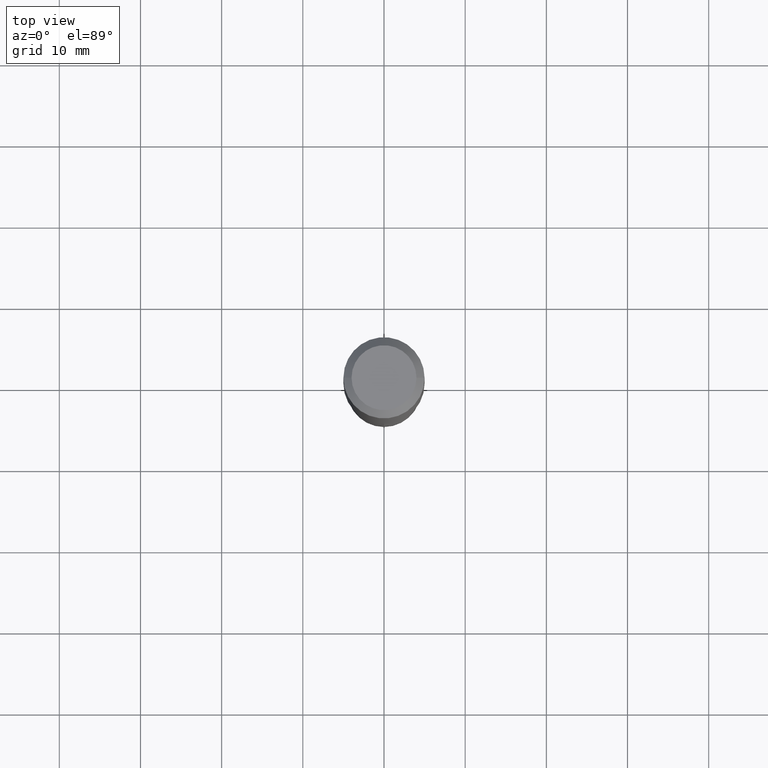
[diagram: clean part render]
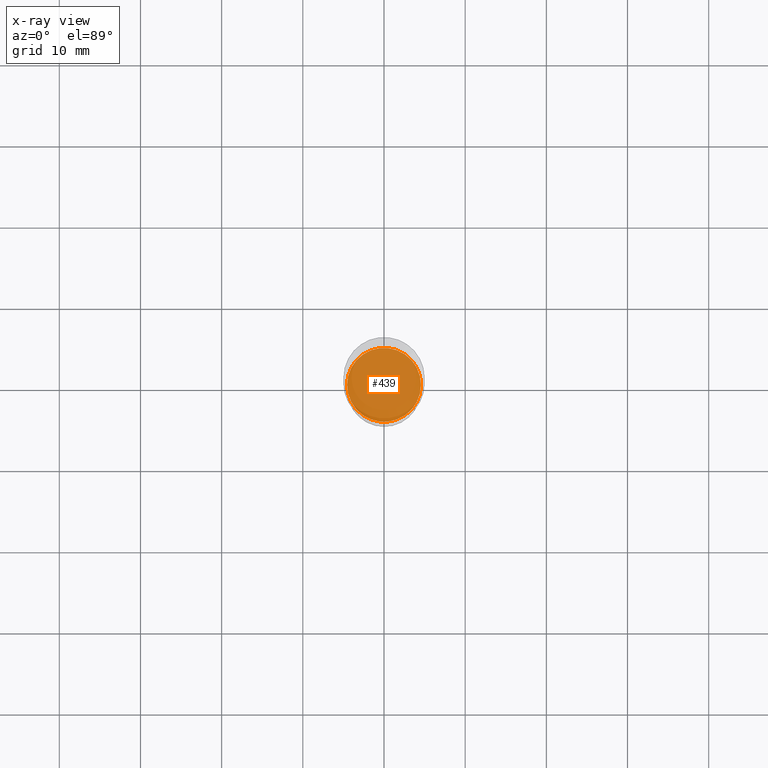
[diagram: x-ray — body ghosted, one internal face saturated and labeled with its STEP entity id]
A machine part, top view, then the same camera in x-ray: the body is ghosted and one INTERNAL B-rep face — a face not visible from any outside direction — is saturated and labeled: STEP entity #439.
In plain terms, the highlighted planar face has unit normal (-0, 0, 1).
Its self-contained STEP definition (entity closure, byte-faithful):
#11 = FACE_OUTER_BOUND ( 'NONE', #445, .T. ) ;
#25 = DIRECTION ( 'NONE',  ( -2.445468806185136597E-29, 3.491481338843145583E-15, 1.000000000000000000 ) ) ;
#61 = DIRECTION ( 'NONE',  ( 1.000000000000000000, -6.982962677686264344E-15, 0.000000000000000000 ) ) ;
#94 = CIRCLE ( 'NONE', #322, 0.1791999999999999982 ) ;
#101 = CARTESIAN_POINT ( 'NONE',  ( 4.922484159970061082E-29, -7.028002786957366746E-15, -2.012899999999999689 ) ) ;
#110 = CARTESIAN_POINT ( 'NONE',  ( 0.1791999999999999982, -8.279349698798745469E-15, -2.012899999999999689 ) ) ;
#131 = CIRCLE ( 'NONE', #189, 0.1791999999999999982 ) ;
#150 = CARTESIAN_POINT ( 'NONE',  ( 4.922484159970061082E-29, -7.028002786957366746E-15, -2.012899999999999689 ) ) ;
#155 = DIRECTION ( 'NONE',  ( 1.000000000000000000, -6.982962677686264344E-15, 0.000000000000000000 ) ) ;
#158 = CARTESIAN_POINT ( 'NONE',  ( 4.922484159970061082E-29, -7.028002786957366746E-15, -2.012899999999999689 ) ) ;
#165 = PLANE ( 'NONE',  #423 ) ;
#189 = AXIS2_PLACEMENT_3D ( 'NONE', #101, #303, #155 ) ;
#222 = VERTEX_POINT ( 'NONE', #359 ) ;
#295 = EDGE_CURVE ( 'NONE', #222, #370, #131, .T. ) ;
#303 = DIRECTION ( 'NONE',  ( -2.445468806185136597E-29, 3.491481338843145583E-15, 1.000000000000000000 ) ) ;
#317 = DIRECTION ( 'NONE',  ( -2.438088387897960049E-29, 3.491481338843145188E-15, 1.000000000000000000 ) ) ;
#322 = AXIS2_PLACEMENT_3D ( 'NONE', #150, #25, #61 ) ;
#323 = DIRECTION ( 'NONE',  ( 1.000000000000000000, -6.982962677686265922E-15, 4.876176775795935793E-29 ) ) ;
#359 = CARTESIAN_POINT ( 'NONE',  ( -0.1791999999999999982, -5.752060977301156617E-15, -2.012899999999999689 ) ) ;
#365 = EDGE_CURVE ( 'NONE', #370, #222, #94, .T. ) ;
#370 = VERTEX_POINT ( 'NONE', #110 ) ;
#406 = ORIENTED_EDGE ( 'NONE', *, *, #365, .F. ) ;
#423 = AXIS2_PLACEMENT_3D ( 'NONE', #158, #317, #323 ) ;
#439 = ADVANCED_FACE ( 'NONE', ( #11 ), #165, .F. ) ;
#445 = EDGE_LOOP ( 'NONE', ( #406, #451 ) ) ;
#451 = ORIENTED_EDGE ( 'NONE', *, *, #295, .F. ) ;